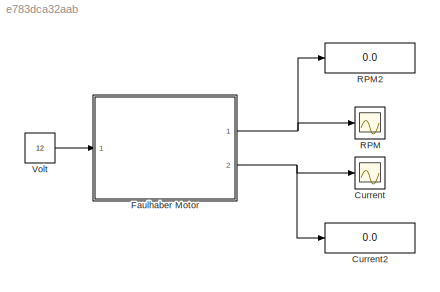
MODEL slx_e783dca32aab
KIND model
CONFIG AbsTol = auto
CONFIG EnableMultiTasking = off
CONFIG FixedStep = 0.0001
CONFIG MaxStep = auto
CONFIG MinStep = auto
CONFIG RelTol = 1e-3
CONFIG SampleTimeConstraint = Unconstrained
CONFIG Solver = ode14x
CONFIG SolverName = ode14x
CONFIG StartTime = 0.0
CONFIG StopTime = 5
BLOCK [Scope] Current
  NumInputPorts = 1
  Ports = [1]
  ScopeSpecificationString = C++SS(StrPVP('SaveName','ScopeData1'))
BLOCK [Display] Current2
  Decimation = 1
  Format = long
  Ports = [1]
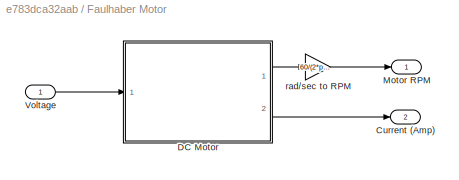
BLOCK [SubSystem] Faulhaber Motor
  Ports = [1, 2]
  RequestExecContextInheritance = off
  Variant = off
BLOCK [Outport] Faulhaber Motor/Current (Amp)
  IconDisplay = Port number
  Port = 2
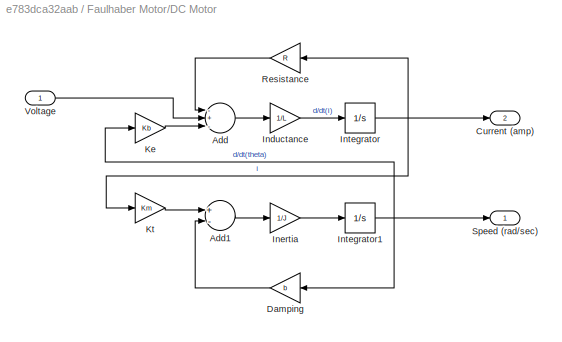
BLOCK [SubSystem] Faulhaber Motor/DC Motor
  Ports = [1, 2]
  RequestExecContextInheritance = off
  Variant = off
BLOCK [Sum] Faulhaber Motor/DC Motor/Add
  InputSameDT = off
  Inputs = -+-
  OutDataTypeStr = Inherit: Inherit via internal rule
  Ports = [3, 1]
  SaturateOnIntegerOverflow = off
BLOCK [Sum] Faulhaber Motor/DC Motor/Add1
  InputSameDT = off
  Inputs = +-
  OutDataTypeStr = Inherit: Inherit via internal rule
  Ports = [2, 1]
  SaturateOnIntegerOverflow = off
BLOCK [Outport] Faulhaber Motor/DC Motor/Current (amp)
  IconDisplay = Port number
  Port = 2
BLOCK [Gain] Faulhaber Motor/DC Motor/Damping
  Gain = b
  OutDataTypeStr = Inherit: Inherit via internal rule
  ParamDataTypeStr = Inherit: Inherit via internal rule
  SaturateOnIntegerOverflow = off
BLOCK [Gain] Faulhaber Motor/DC Motor/Inductance
  Gain = 1/L
  OutDataTypeStr = Inherit: Inherit via internal rule
  ParamDataTypeStr = Inherit: Inherit via internal rule
  SaturateOnIntegerOverflow = off
BLOCK [Gain] Faulhaber Motor/DC Motor/Inertia
  Gain = 1/J
  OutDataTypeStr = Inherit: Inherit via internal rule
  ParamDataTypeStr = Inherit: Inherit via internal rule
  SaturateOnIntegerOverflow = off
BLOCK [Integrator] Faulhaber Motor/DC Motor/Integrator
  Ports = [1, 1]
BLOCK [Integrator] Faulhaber Motor/DC Motor/Integrator1
  Ports = [1, 1]
BLOCK [Gain] Faulhaber Motor/DC Motor/Ke
  Gain = Kb
  OutDataTypeStr = Inherit: Inherit via internal rule
  ParamDataTypeStr = Inherit: Inherit via internal rule
  SaturateOnIntegerOverflow = off
BLOCK [Gain] Faulhaber Motor/DC Motor/Kt
  Gain = Km
  OutDataTypeStr = Inherit: Inherit via internal rule
  ParamDataTypeStr = Inherit: Inherit via internal rule
  SaturateOnIntegerOverflow = off
BLOCK [Gain] Faulhaber Motor/DC Motor/Resistance
  Gain = R
  OutDataTypeStr = Inherit: Inherit via internal rule
  ParamDataTypeStr = Inherit: Inherit via internal rule
  SaturateOnIntegerOverflow = off
BLOCK [Outport] Faulhaber Motor/DC Motor/Speed (rad//sec)
  IconDisplay = Port number
BLOCK [Inport] Faulhaber Motor/DC Motor/Voltage
  IconDisplay = Port number
BLOCK [Outport] Faulhaber Motor/Motor RPM
  IconDisplay = Port number
BLOCK [Inport] Faulhaber Motor/Voltage
  IconDisplay = Port number
BLOCK [Gain] Faulhaber Motor/rad//sec to RPM
  Gain = 60/(2*pi)
  OutDataTypeStr = Inherit: Inherit via internal rule
  ParamDataTypeStr = Inherit: Inherit via internal rule
  SaturateOnIntegerOverflow = off
BLOCK [Scope] RPM
  NumInputPorts = 1
  Ports = [1]
  ScopeSpecificationString = Simulink.scopes.TimeScopeBlockCfg('CurrentConfiguration', extmgr.ConfigurationSet(extmgr.Configuration('Core','General UI',true),extmgr.Configuration('Core','Source UI',true),extmgr.Configuration('Sources','WiredSimulink',true),extmgr.Configuration('Visuals','Time Domain',true,'SerializedDisplays',{struct('MinYLimReal','-1269.99226','MaxYLimReal','11429.93038','YLabelReal','','MinYLimMag','  0.000...<+1412ch>
BLOCK [Display] RPM2
  Decimation = 1
  Format = long
  Ports = [1]
BLOCK [Constant] Volt
  Value = 12
LINE Faulhaber Motor/DC Motor/Add1:1 -> Faulhaber Motor/DC Motor/Inertia:1
LINE Faulhaber Motor/DC Motor/Add:1 -> Faulhaber Motor/DC Motor/Inductance:1
LINE Faulhaber Motor/DC Motor/Damping:1 -> Faulhaber Motor/DC Motor/Add1:2
LINE Faulhaber Motor/DC Motor/Inductance:1 -> Faulhaber Motor/DC Motor/Integrator:1
LINE Faulhaber Motor/DC Motor/Inertia:1 -> Faulhaber Motor/DC Motor/Integrator1:1
NET Faulhaber Motor/DC Motor/Integrator1:1 -> Faulhaber Motor/DC Motor/Damping:1, Faulhaber Motor/DC Motor/Ke:1, Faulhaber Motor/DC Motor/Speed (rad//sec):1
NET Faulhaber Motor/DC Motor/Integrator:1 -> Faulhaber Motor/DC Motor/Current (amp):1, Faulhaber Motor/DC Motor/Kt:1, Faulhaber Motor/DC Motor/Resistance:1
LINE Faulhaber Motor/DC Motor/Ke:1 -> Faulhaber Motor/DC Motor/Add:3
LINE Faulhaber Motor/DC Motor/Kt:1 -> Faulhaber Motor/DC Motor/Add1:1
LINE Faulhaber Motor/DC Motor/Resistance:1 -> Faulhaber Motor/DC Motor/Add:1
LINE Faulhaber Motor/DC Motor/Voltage:1 -> Faulhaber Motor/DC Motor/Add:2
LINE Faulhaber Motor/DC Motor:1 -> Faulhaber Motor/rad//sec to RPM:1
LINE Faulhaber Motor/DC Motor:2 -> Faulhaber Motor/Current (Amp):1
LINE Faulhaber Motor/Voltage:1 -> Faulhaber Motor/DC Motor:1
LINE Faulhaber Motor/rad//sec to RPM:1 -> Faulhaber Motor/Motor RPM:1
NET Faulhaber Motor:1 -> RPM2:1, RPM:1
NET Faulhaber Motor:2 -> Current2:1, Current:1
LINE Volt:1 -> Faulhaber Motor:1
note: NET lines group one-source signal fan-out (src -> all destinations, sorted); 1:1 wires keep LINE
